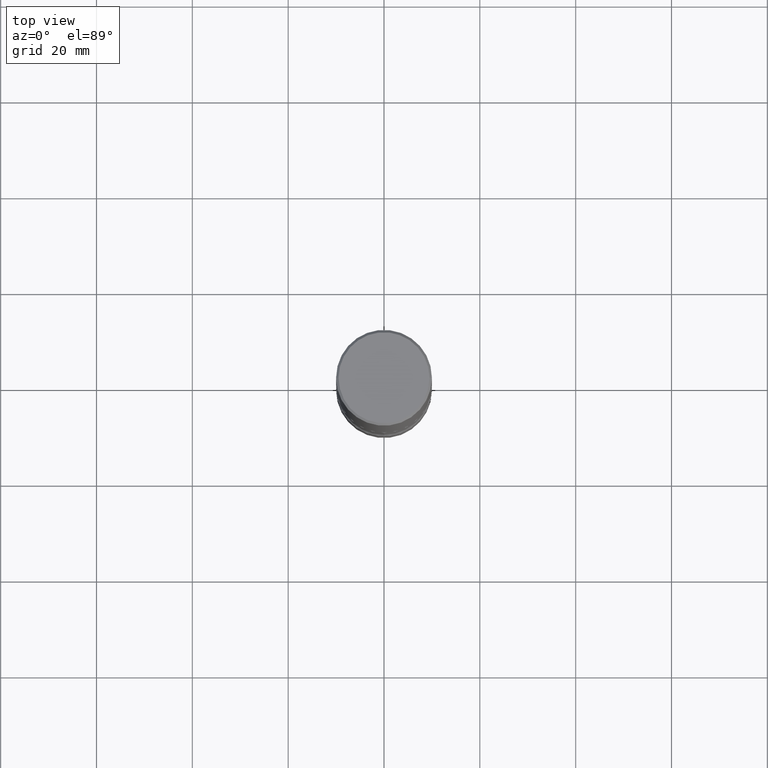
[diagram: clean part render]
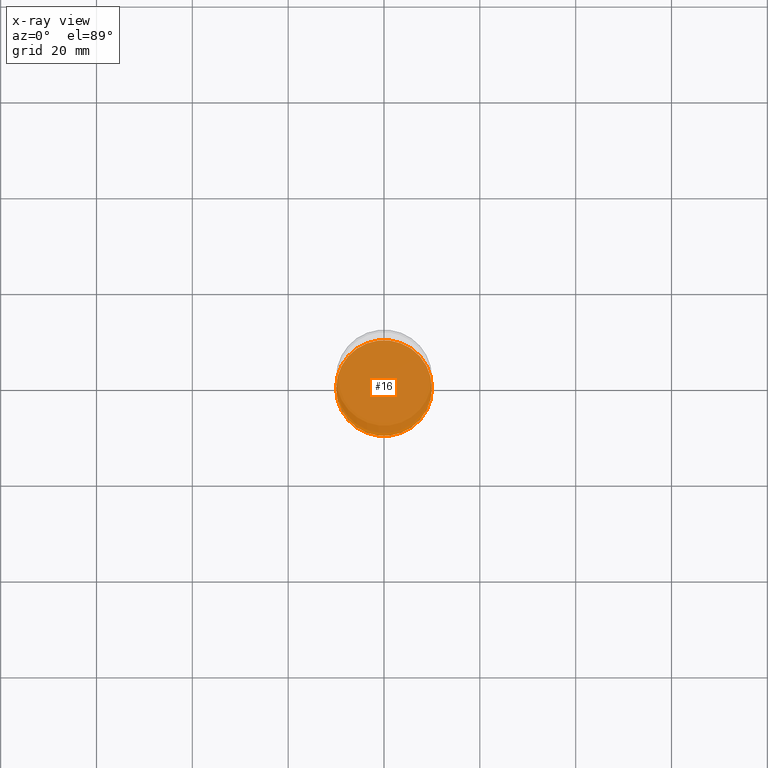
[diagram: x-ray — body ghosted, one internal face saturated and labeled with its STEP entity id]
A machine part, top view, then the same camera in x-ray: the body is ghosted and one INTERNAL B-rep face — a face not visible from any outside direction — is saturated and labeled: STEP entity #16.
In plain terms, the highlighted planar face has unit normal (0, -0, -1).
Its self-contained STEP definition (entity closure, byte-faithful):
#16 = ADVANCED_FACE ( 'NONE', ( #267 ), #351, .F. ) ;
#19 = AXIS2_PLACEMENT_3D ( 'NONE', #202, #423, #382 ) ;
#63 = AXIS2_PLACEMENT_3D ( 'NONE', #158, #467, #548 ) ;
#77 = DIRECTION ( 'NONE',  ( -1.000000000000000000, 6.982962677686265922E-15, -4.876176775795935793E-29 ) ) ;
#83 = CIRCLE ( 'NONE', #19, 0.3937000000000001609 ) ;
#113 = CARTESIAN_POINT ( 'NONE',  ( 0.3937000000000001609, -1.993147037091996521E-14, -4.921199999999998020 ) ) ;
#158 = CARTESIAN_POINT ( 'NONE',  ( 1.203464108899828931E-28, -1.718227796471488199E-14, -4.921199999999998020 ) ) ;
#163 = CARTESIAN_POINT ( 'NONE',  ( -0.3937000000000001609, -1.596581396425554158E-14, -4.921199999999998020 ) ) ;
#199 = VERTEX_POINT ( 'NONE', #163 ) ;
#202 = CARTESIAN_POINT ( 'NONE',  ( 1.203464108899828931E-28, -1.718227796471488199E-14, -4.921199999999998020 ) ) ;
#265 = EDGE_CURVE ( 'NONE', #199, #385, #83, .T. ) ;
#267 = FACE_OUTER_BOUND ( 'NONE', #559, .T. ) ;
#297 = ORIENTED_EDGE ( 'NONE', *, *, #265, .T. ) ;
#305 = CARTESIAN_POINT ( 'NONE',  ( 1.203464108899828931E-28, -1.718227796471488199E-14, -4.921199999999998020 ) ) ;
#317 = EDGE_CURVE ( 'NONE', #385, #199, #419, .T. ) ;
#351 = PLANE ( 'NONE',  #472 ) ;
#382 = DIRECTION ( 'NONE',  ( 1.000000000000000000, -6.982962677686265922E-15, 0.000000000000000000 ) ) ;
#385 = VERTEX_POINT ( 'NONE', #113 ) ;
#419 = CIRCLE ( 'NONE', #63, 0.3937000000000001609 ) ;
#423 = DIRECTION ( 'NONE',  ( -2.445468806185136597E-29, 3.491481338843145583E-15, 1.000000000000000000 ) ) ;
#441 = ORIENTED_EDGE ( 'NONE', *, *, #317, .T. ) ;
#444 = DIRECTION ( 'NONE',  ( 2.438088387897960049E-29, -3.491481338843145188E-15, -1.000000000000000000 ) ) ;
#467 = DIRECTION ( 'NONE',  ( -2.445468806185136597E-29, 3.491481338843145583E-15, 1.000000000000000000 ) ) ;
#472 = AXIS2_PLACEMENT_3D ( 'NONE', #305, #444, #77 ) ;
#548 = DIRECTION ( 'NONE',  ( 1.000000000000000000, -6.982962677686265922E-15, 0.000000000000000000 ) ) ;
#559 = EDGE_LOOP ( 'NONE', ( #441, #297 ) ) ;